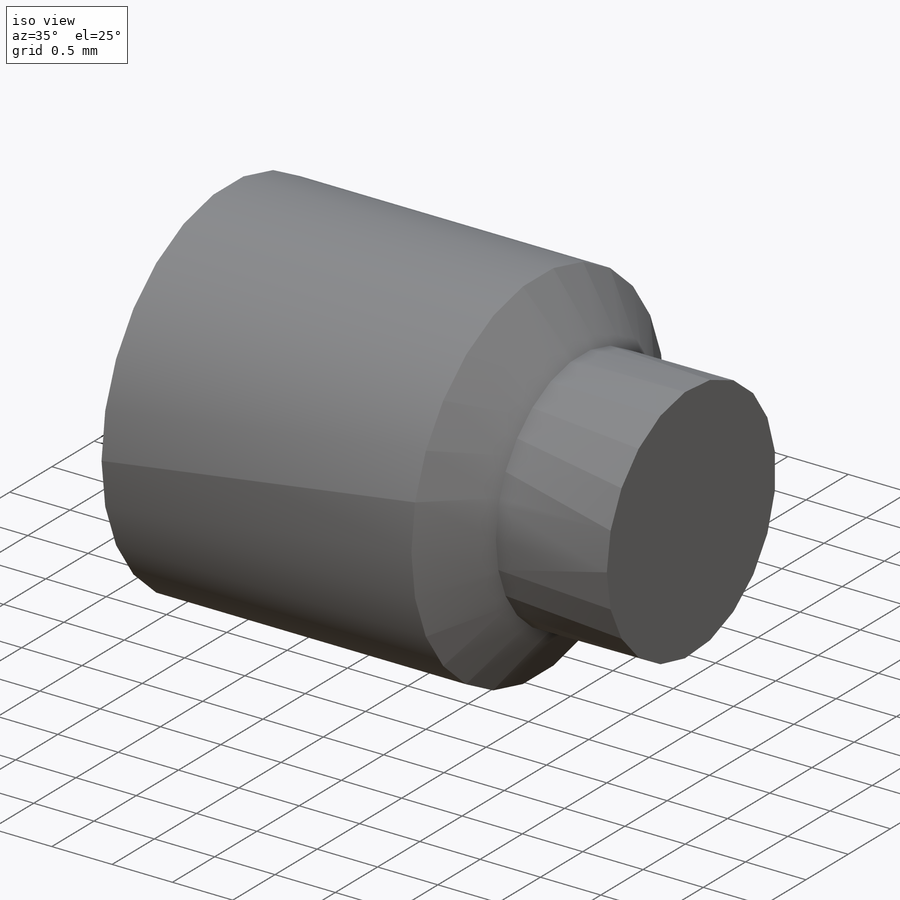
[diagram: iso view]
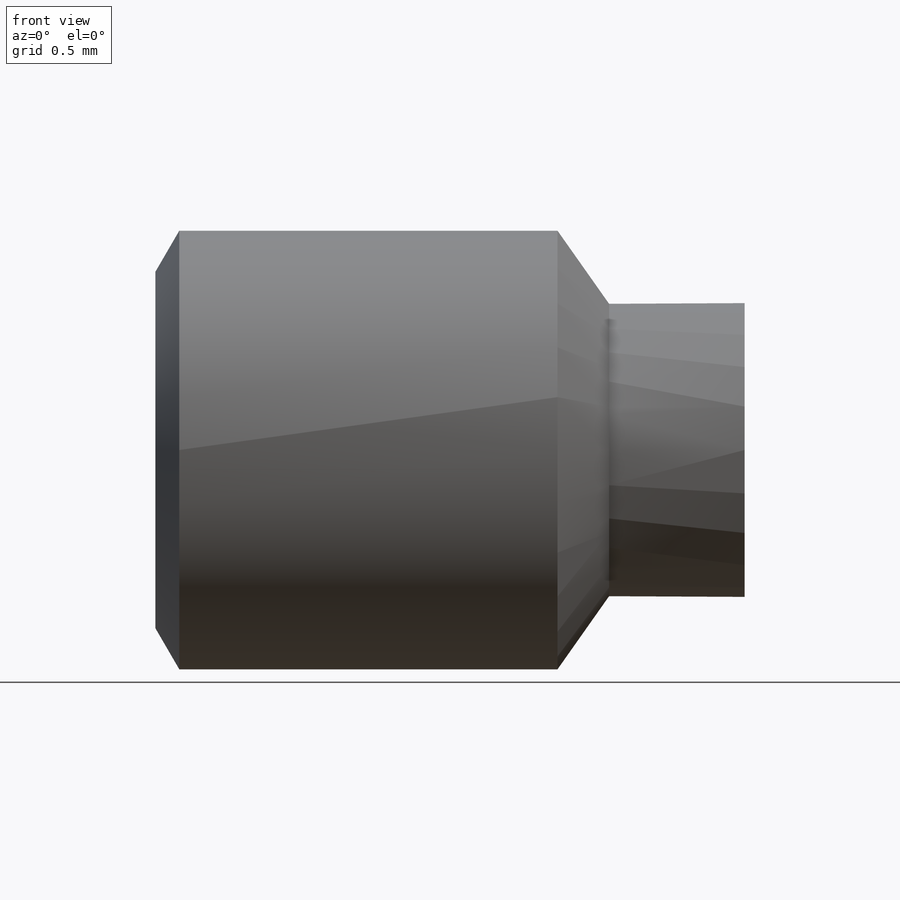
[diagram: front view]
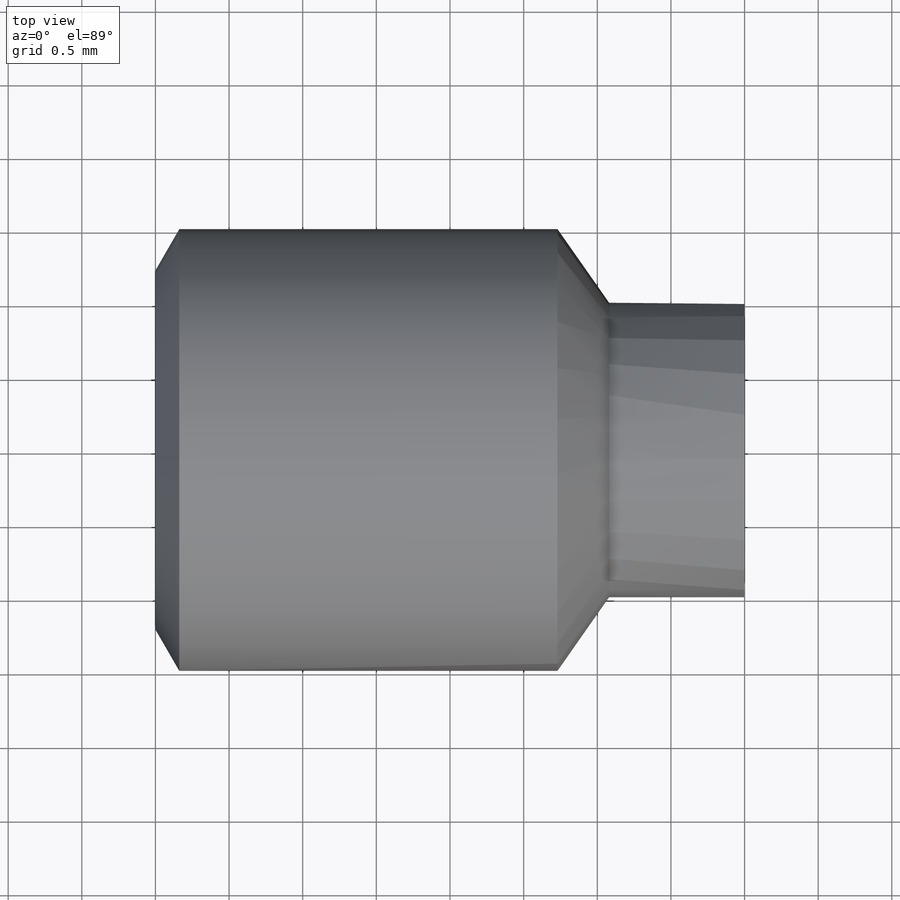
[diagram: top view]
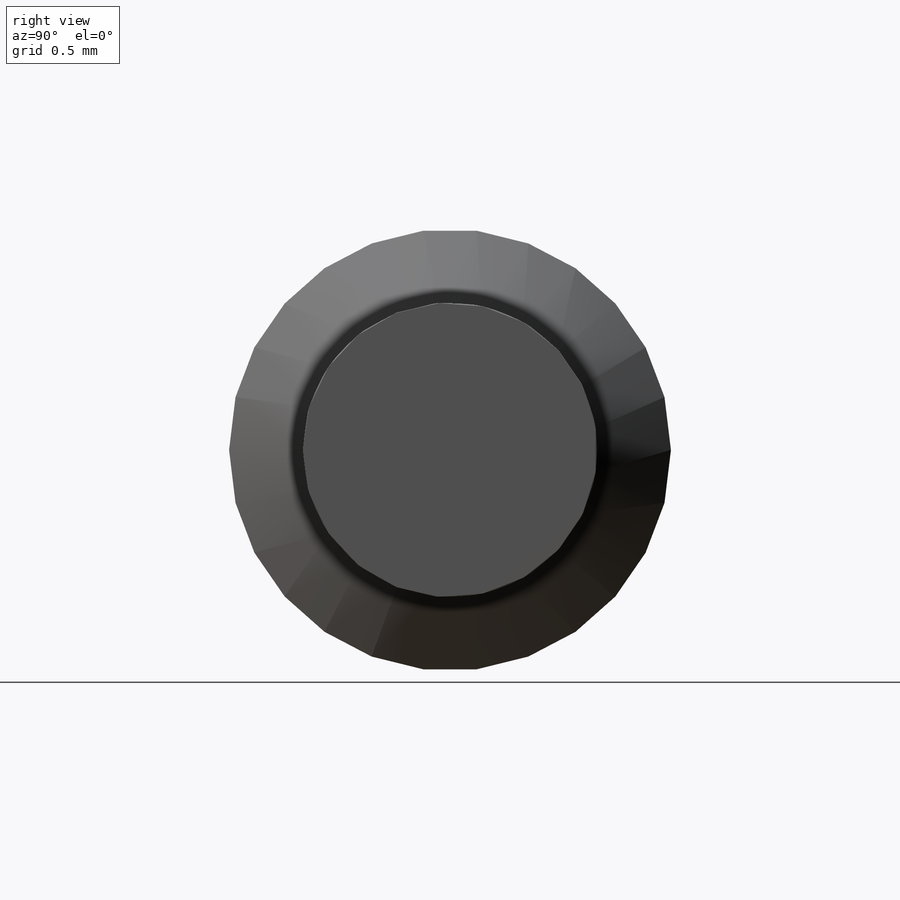
[diagram: right view]
SOLIDWORKS PART (.sldprt)
format: sldprt  version: not decoded by parser v0  size: 783,872 bytes
history: native  units: mm
features: sketch x5, plane x3, cut_extrude x3, pattern_circular x2, material x1, revolve x1, thread x1, cut_revolve x1, pattern_linear x1 (+9 scaffold rows collapsed)
feature tree (27):
  scaffold x9  (default folders/planes/origin — collapsed)
  material  "Material <não especificado>"
  plane  "Plane1"
  plane  "Plane2"
  plane  "Plane3"
  sketch  "BodySke"  dims[c1.D1=~35.921024mm c2.D1=270.0deg c3.D1=~35.921024mm c3.Cone_ang=90.0deg c3.Length=50.8mm c3.Diameter=3.0mm c3.D4=~4.490128mm c3.Drive_ch_ang=60.0deg c3.Minor_dia=2.439mm c4.D1=~8.980256mm c4.Cup_nose_ang=45.0deg c5.D1=~7.099516mm c5.Cup_ang=118.0deg c5.Cup_dia=15.4686mm c5.Length=50.8mm c5.Dog_dia=2.0mm c5.Dog_len=0.92mm c6.Length=3.0mm c6.D1=~5.893963mm c7.D1=55.0deg c7.Advance=0.5mm c7.Head_ht=~1.88976mm c7.BodyLength=~40.083081mm c8.D1=9.0mm c9.D1=35.0deg]
  revolve  "BaseBody"  [1 undecoded]
  thread  "ThreadCosmetic"  Diameter=2.439mm Thread_minor=2.439mm  [1 undecoded]
  sketch  "Sketch2"  dims[Hex_size=1.5mm D2=0.75mm D3=0.75mm]
  cut_extrude  "Hex"  Depth=1mm Key_eng=1mm
  sketch  "Sketch4"  dims[c1.Spline_n_dim=17.399mm c1.Spline_m_dim=20.3454mm c2.Spline_n_dim=1.295mm c2.Spline_m_dim=1.575mm c2.D1=5.8547mm c3.D1=30.0deg c3.D2=5.8547mm c3.Spline_a_dim=60.0deg c3.Spline_p_dim=2.794mm c4.Spline_p_dim=0.356mm c4.D3=0.178mm]
  cut_extrude  "Spline6"  Depth=1mm Key_eng=1mm
  pattern_circular  "CirPattern1"  Count=6 Angle=60deg Num_teeth=6
  sketch  "Sketch5"  dims[c1.Spline_n_dim=17.399mm c1.Spline_m_dim=20.3454mm c2.Spline_n_dim=1.295mm c2.Spline_m_dim=1.575mm c2.D1=5.8547mm c3.D1=45.0deg c3.D2=5.8547mm c3.Spline_a_dim=90.0deg c3.Spline_p_dim=2.794mm c4.Spline_p_dim=0.356mm c4.D3=0.178mm]
  cut_extrude  "Spline4"  Depth=1mm Key_eng=1mm
  pattern_circular  "CirPattern2"  Count=4 Angle=90deg
  sketch  "ThdSchSke"  dims[c1.Thread_minor=~1.03886mm c1.Diameter=~1.413535mm c1.Start=~0.988134mm c1.D4=~4.446753mm c1.Vee=60.0deg c2.Thread_minor=~1.03886mm c2.Start=~2.540025mm c2.D1=~0.108159mm c2.D2=~0.108159mm c3.D1=~0.216319mm c3.SideAngle=55.0deg c3.D2=~0.216319mm c3.VeeAngle=70.0deg c3.Thread_minor=2.439mm c3.Overcut=3.75mm c3.Diameter=3.0mm c3.D6=~8.326268mm c4.D1=~8.326268mm c5.D1=90.0deg c5.Start=63.5mm c6.Start=20.5486mm c7.Start=~1.88976mm]
  cut_revolve  "ThreadSchematic"  Angle=360deg
  pattern_linear  "ThdSchPat"  Count1=4 Count2=1 Spacing1=0.479513mm Spacing2=50mm Num_threads=4 Advance=0.479513mm
decode coverage: 13 of 14 modeling features carry decoded parameters
note: ~ marks probable driven/reference dimensions
note: 2 parameter values undecoded
note: suppression state not decoded; provenance and decode notes live in map.json
